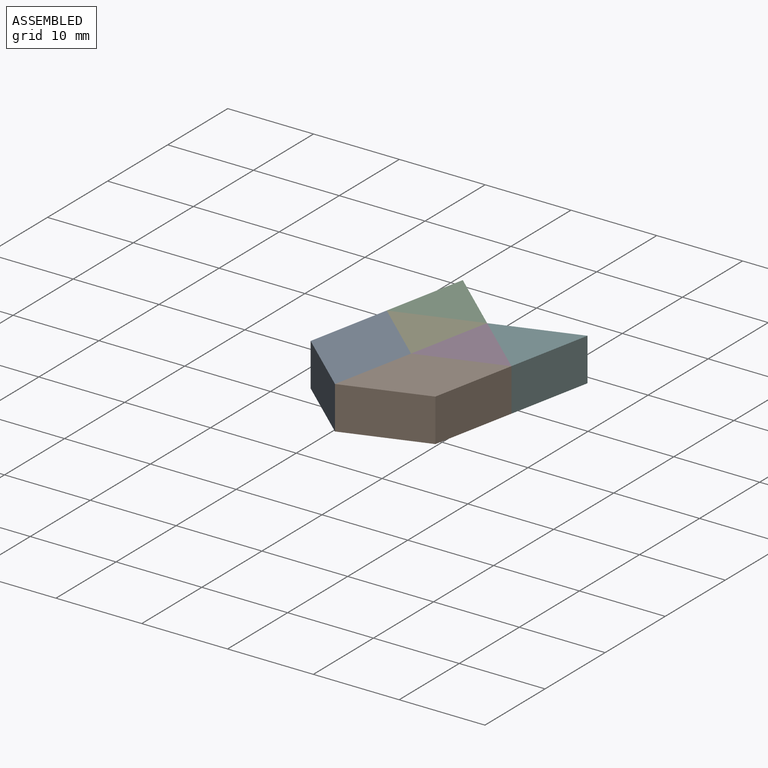
[diagram: assembled view]
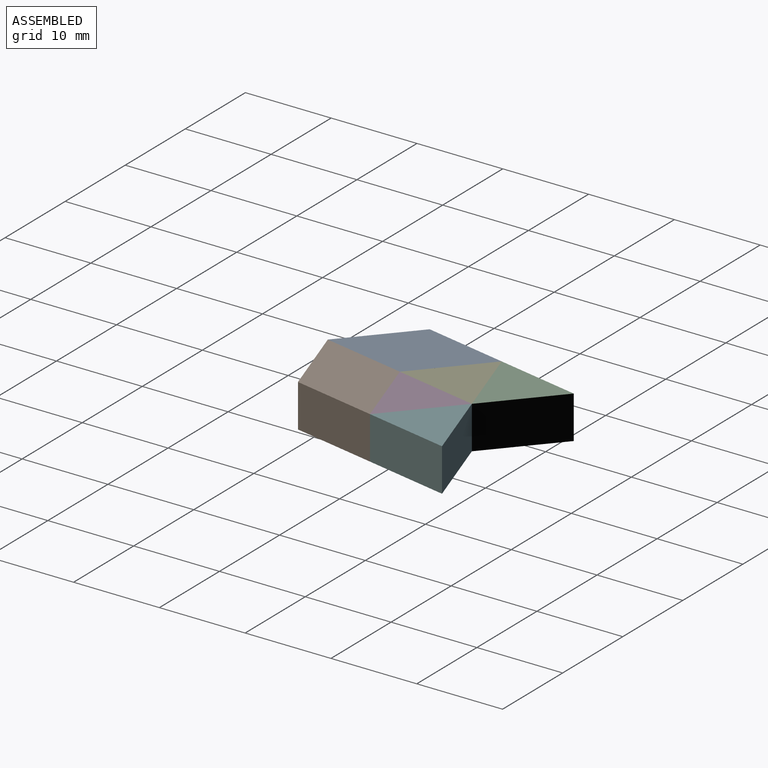
[diagram: assembled view, second angle]
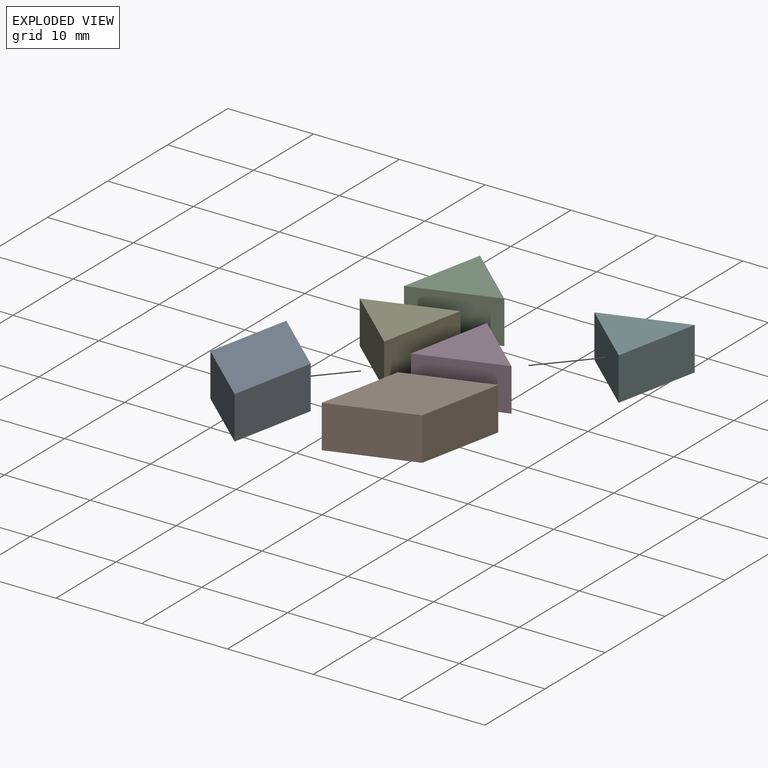
[diagram: exploded view]
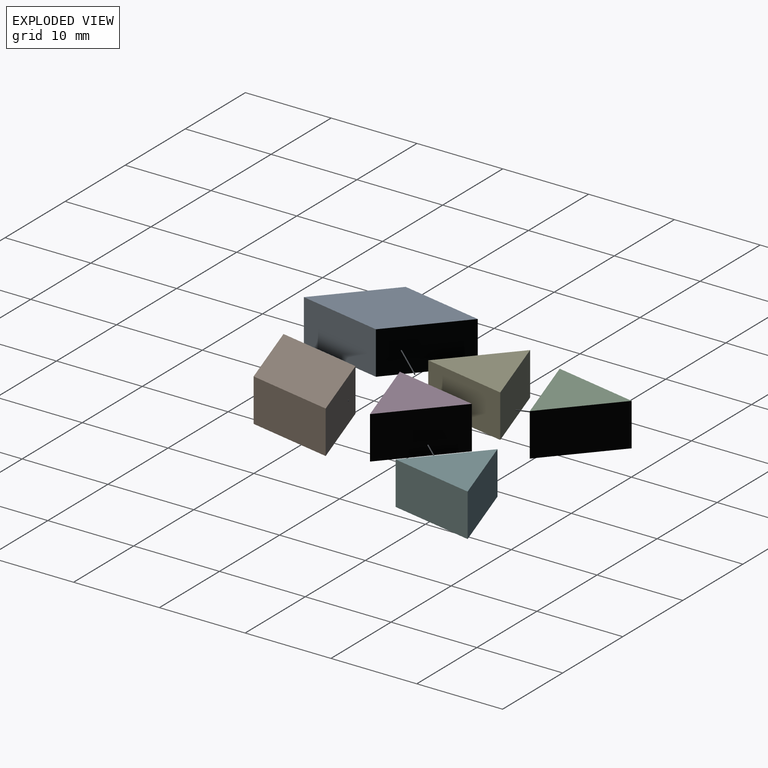
[diagram: exploded view, second angle]
ASSEMBLY  parts=6 mates=5
PART A: 6 faces, bbox 10x17.3x5 mm
  f0: plane 8.66x5mm, normal (0.87,0.5,0), area 50mm2, adj f1,f3,f4,f5
  f1: plane 8.66x5mm, normal (-0.87,0.5,0), area 50mm2, adj f0,f2,f4,f5
  f2: plane 8.66x5mm, normal (-0.87,-0.5,0), area 50mm2, adj f1,f3,f4,f5
  f3: plane 8.66x5mm, normal (0.87,-0.5,0), area 50mm2, adj f0,f2,f4,f5
  f4: plane 17.32x10mm, normal (0,0,1), area 86.6mm2, adj f0,f1,f2,f3
  f5: plane 17.32x10mm, normal (0,0,-1), area 86.6mm2, adj f0,f1,f2,f3
PART B: same geometry as A
PART C: 5 faces, bbox 9.5x9.8x5 mm
  f0: plane 9.8x5mm, normal (-0.98,0.2,0), area 50mm2, adj f1,f2,f3,f4
  f1: plane 9.49x5mm, normal (0.32,-0.95,0), area 50mm2, adj f0,f2,f3,f4
  f2: plane 7.48x6.63mm, normal (0.66,0.75,0), area 50mm2, adj f0,f1,f3,f4
  f3: plane 9.8x9.49mm, normal (0,0,1), area 43.3mm2, adj f0,f1,f2
  f4: plane 9.8x9.49mm, normal (0,0,-1), area 43.3mm2, adj f0,f1,f2
PART D: same geometry as C
PART E: same geometry as C
PART F: same geometry as C
PLACE A rot(axis=(0,0,1),18.4deg) t=(-3.51,-13.05,7.28)mm
PLACE B rot(axis=(0,0,-1),41.6deg) t=(-32.16,-26.11,7.28)mm
PLACE C t=(1.62,-17.73,7.28)mm
PLACE D t=(9.11,-24.37,7.28)mm
PLACE E rot(axis=(0,0,-1),60deg) t=(-50.61,-29.43,7.28)mm
PLACE F rot(axis=(0,0,1),60deg) t=(34.58,29.88,7.28)mm
MATE fastened A.f0 <-> E.f1  axis (0.66,0.75,0) through (-30.88,18.34,9.78)mm
MATE fastened F.f0 <-> D.f2  axis (-0.66,-0.75,0) through (-21.39,21.5,9.78)mm
MATE fastened E.f2 <-> D.f0  axis (0.98,-0.2,0) through (-26.14,19.92,9.78)mm
MATE fastened B.f1 <-> D.f1  axis (-0.32,0.95,0) through (-22.4,16.6,9.78)mm
MATE fastened E.f0 <-> C.f1  axis (-0.32,0.95,0) through (-29.88,23.24,9.78)mm
